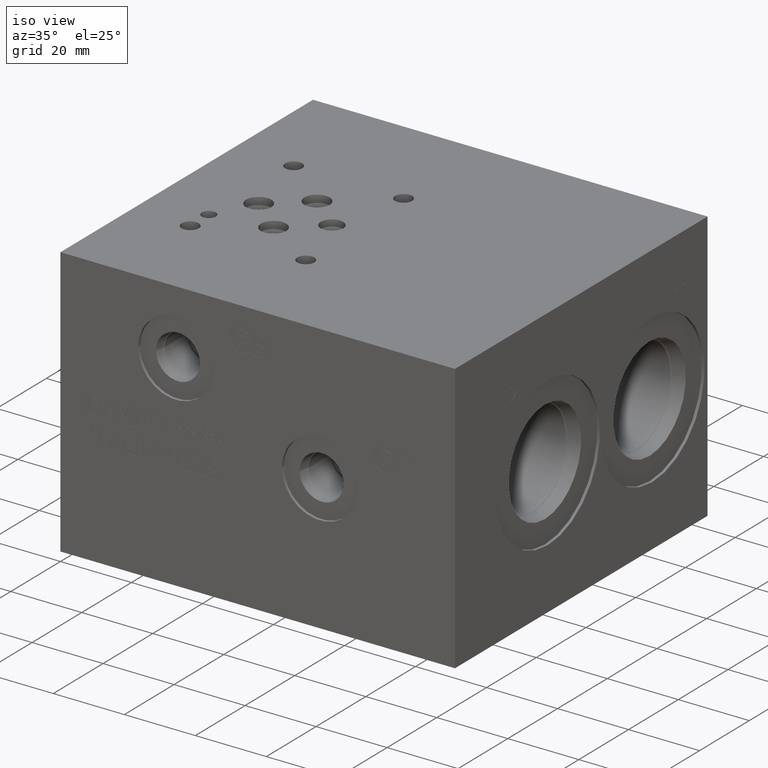
[diagram: clean part render]
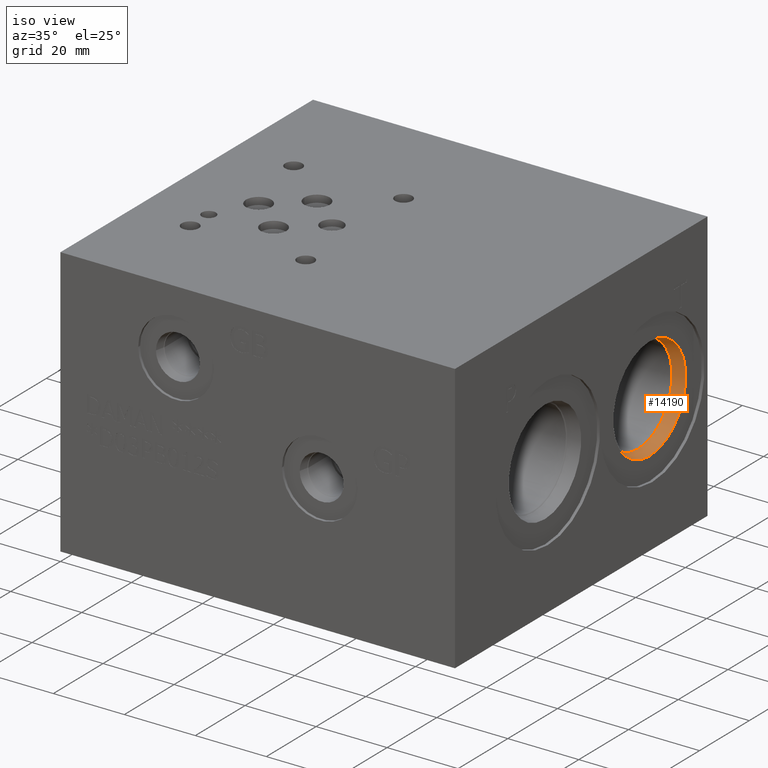
[diagram: same view with one face highlighted and labeled with its STEP entity id]
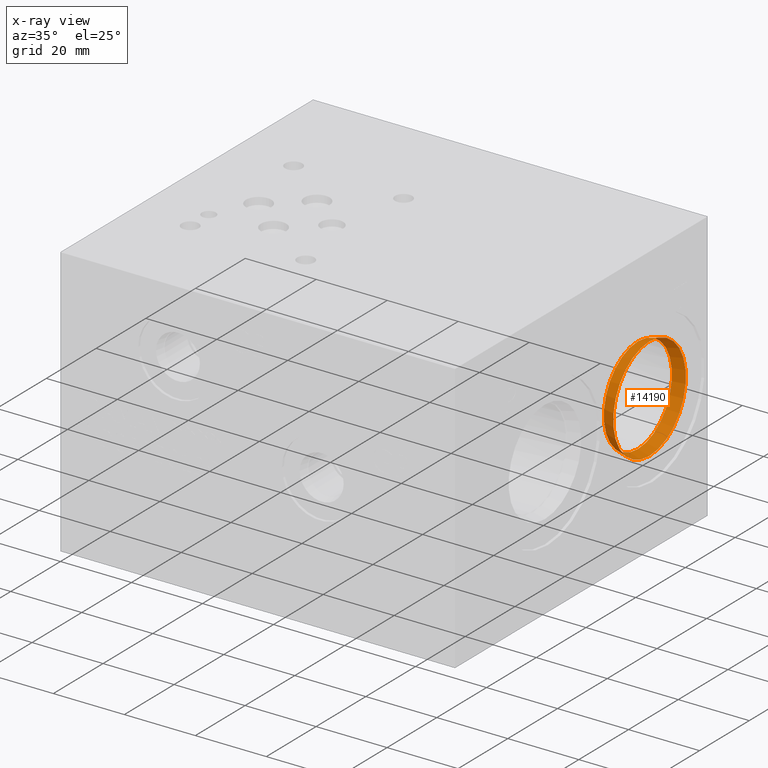
[diagram: x-ray of the same camera — body ghosted, the highlighted face saturated]
A machine part, iso view. The second image highlights one B-rep face of the part: STEP entity #14190.
The next image is the same camera in x-ray: the body ghosted, the highlighted face saturated — about 0% of this face is hidden behind the body in this view.
In plain terms, the highlighted conical surface has half-angle 15 deg.
Its self-contained STEP definition (entity closure, byte-faithful):
#100=CONICAL_SURFACE('',#14840,14.15415,0.261799389532319);
#248=CIRCLE('',#14838,14.5923);
#249=CIRCLE('',#14839,14.5923);
#250=CIRCLE('',#14841,13.716);
#251=CIRCLE('',#14842,13.716);
#1543=FACE_OUTER_BOUND('',#2355,.T.);
#2355=EDGE_LOOP('',(#12207,#12208,#12209,#12210,#12211,#12212));
#3699=LINE('',#24286,#4984);
#4984=VECTOR('',#17362,14.15415);
#6668=VERTEX_POINT('',#24280);
#6669=VERTEX_POINT('',#24281);
#6670=VERTEX_POINT('',#24285);
#6671=VERTEX_POINT('',#24287);
#8576=EDGE_CURVE('',#6668,#6669,#248,.T.);
#8577=EDGE_CURVE('',#6669,#6668,#249,.T.);
#8578=EDGE_CURVE('',#6669,#6670,#3699,.T.);
#8579=EDGE_CURVE('',#6670,#6671,#250,.T.);
#8580=EDGE_CURVE('',#6671,#6670,#251,.T.);
#12207=ORIENTED_EDGE('',*,*,#8576,.F.);
#12208=ORIENTED_EDGE('',*,*,#8577,.F.);
#12209=ORIENTED_EDGE('',*,*,#8578,.T.);
#12210=ORIENTED_EDGE('',*,*,#8579,.T.);
#12211=ORIENTED_EDGE('',*,*,#8580,.T.);
#12212=ORIENTED_EDGE('',*,*,#8578,.F.);
#14190=ADVANCED_FACE('',(#1543),#100,.F.);
#14838=AXIS2_PLACEMENT_3D('',#24282,#17356,#17357);
#14839=AXIS2_PLACEMENT_3D('',#24283,#17358,#17359);
#14840=AXIS2_PLACEMENT_3D('',#24284,#17360,#17361);
#14841=AXIS2_PLACEMENT_3D('',#24288,#17363,#17364);
#14842=AXIS2_PLACEMENT_3D('',#24289,#17365,#17366);
#17356=DIRECTION('center_axis',(-1.,0.,0.));
#17357=DIRECTION('ref_axis',(0.,0.,1.));
#17358=DIRECTION('center_axis',(-1.,0.,0.));
#17359=DIRECTION('ref_axis',(0.,0.,1.));
#17360=DIRECTION('center_axis',(1.,0.,0.));
#17361=DIRECTION('ref_axis',(0.,0.,-1.));
#17362=DIRECTION('',(-0.965925825840491,-3.16961917193374E-17,-0.258819046776634));
#17363=DIRECTION('center_axis',(-1.,0.,0.));
#17364=DIRECTION('ref_axis',(0.,0.,1.));
#17365=DIRECTION('center_axis',(-1.,0.,0.));
#17366=DIRECTION('ref_axis',(0.,0.,1.));
#24280=CARTESIAN_POINT('',(110.3376,79.375,23.5077));
#24281=CARTESIAN_POINT('',(110.3376,79.375,52.6923));
#24282=CARTESIAN_POINT('Origin',(110.3376,79.375,38.1));
#24283=CARTESIAN_POINT('Origin',(110.3376,79.375,38.1));
#24284=CARTESIAN_POINT('Origin',(108.70240195,79.375,38.1));
#24285=CARTESIAN_POINT('',(107.0672039,79.375,51.816));
#24286=CARTESIAN_POINT('',(108.70240195,79.375,52.25415));
#24287=CARTESIAN_POINT('',(107.0672039,79.375,24.384));
#24288=CARTESIAN_POINT('Origin',(107.0672039,79.375,38.1));
#24289=CARTESIAN_POINT('Origin',(107.0672039,79.375,38.1));